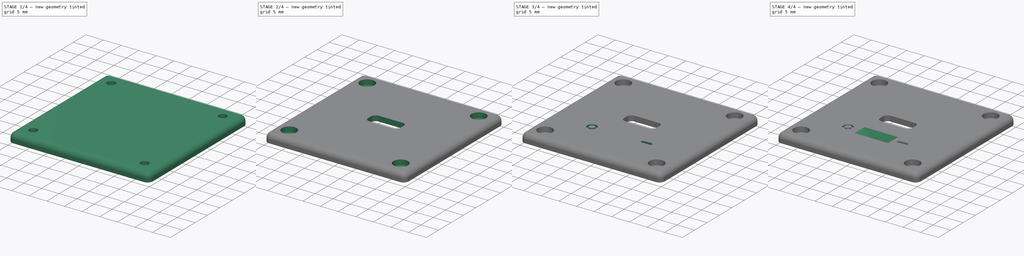
[diagram: build sequence overview — one tinted view per stage of 4, left to right]
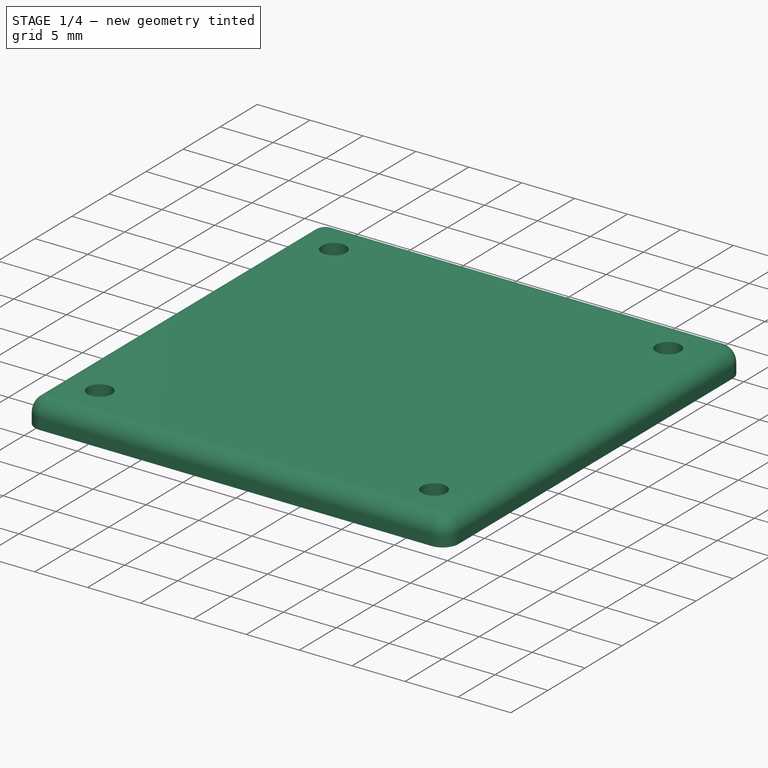
[diagram: stage 1 of 4 — iso view after this stage's code; geometry added in this stage tinted green]
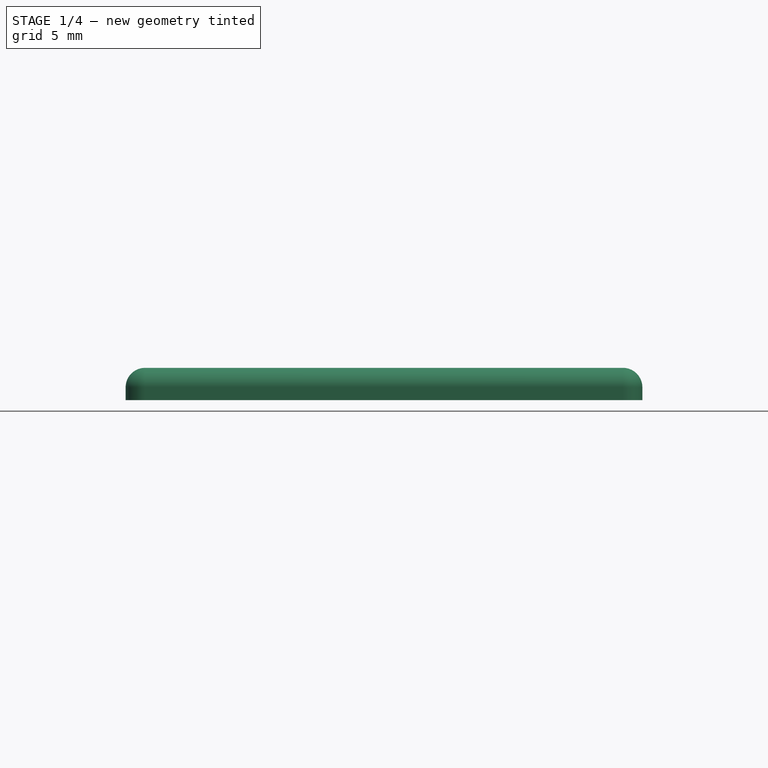
[diagram: stage 1 of 4 — front view after this stage's code; geometry added in this stage tinted green]
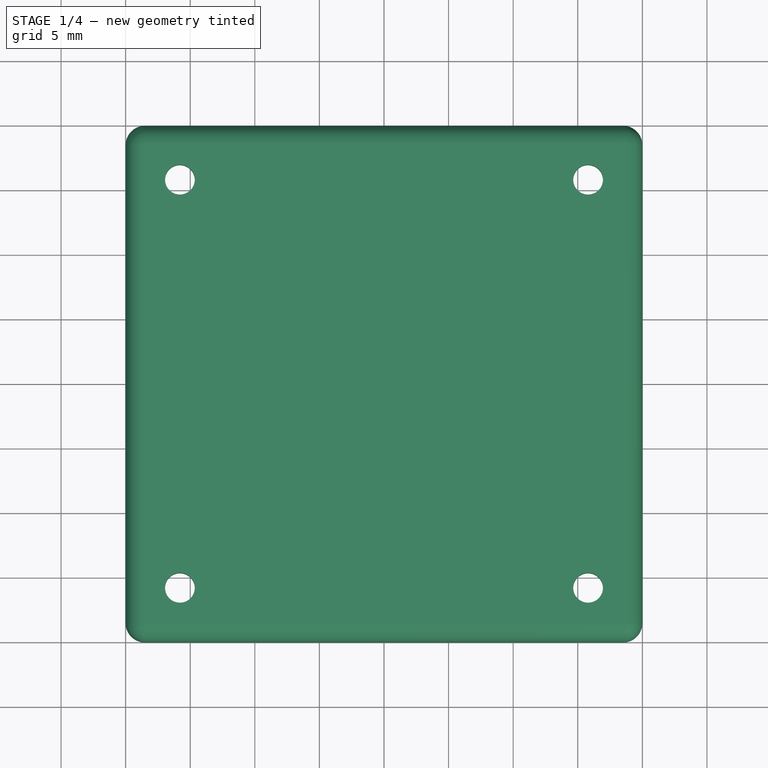
[diagram: stage 1 of 4 — top view after this stage's code; geometry added in this stage tinted green]
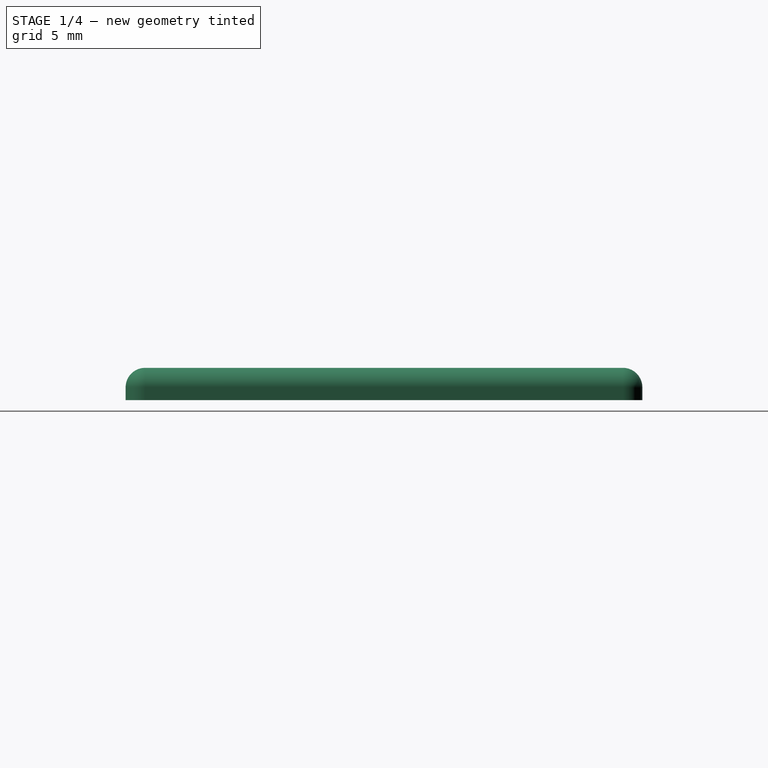
[diagram: stage 1 of 4 — right view after this stage's code; geometry added in this stage tinted green]
FCSTD DOCUMENT  (FreeCAD 1.0R39109 (Git))
Label: bbk3_bottom
License: All rights reserved
LicenseURL: https://en.wikipedia.org/wiki/All_rights_reserved
objects: Sketcher::SketchObject×8, PartDesign::Pocket×8, PartDesign::Pad×2, Spreadsheet::Sheet×1, PartDesign::Fillet×1, Part::Loft×1, PartDesign::Body×1, Part::Cut×1
note: 52 computed .brp shape members not serialized (recipe doc carries the construction recipe); baked Part::Feature solids carry a one-line shape summary decoded from their .brp

FEATURE [Spreadsheet::Sheet] Spreadsheet  label="bottom_parameters"
  cells = A1='cube_size; B1(cube_size)=40; A2='plate_height; B2(plate_height)=2.5; A3='radius_corner; B3(radius_corner)=1.5; A4='radius_inner; B4(radius_inner)=1.15; A5='radius_outer; B5(radius_outer)=2.05; A6='distance_origin; B6(distance_origin)=4.2; A7='radius_magnet; B7(radius_magnet)=3.2; A8='outer_heigth; B8(outer_heigth)=1.5; A9='inner_height; B9(inner_height)=3; A10='inner_rect_depth; B10(inner_rect_depth)=9.2; A11='inner_rect_larg; B11(inner_rect_larg)=3.75; A12='inner_rect_distance_from_center; B12(inner_rect_distance_from_center)=0.75; A13='inner_rect_radius; B13(inner_rect_radius)=1.25; A14='bottom_rect_distance_center; B14(bottom_rect_distance_center)=2.5; A15='bottom_rect_depth; B15(bottom_rect_depth)=22; A16='bottom_rect_larg; B16(bottom_rect_larg)=11; A17='bottom_rect_height; B17(bottom_rect_height)=1; A18='bottom_rect2_distance_center; B18(bottom_rect2_distance_center)=8; A19='bottom_rect2_depth; B19(bottom_rect2_depth)=9.5; A20='bottom_rect2_larg; B20(bottom_rect2_larg)=4; A21='bottom_rect2_height; B21(bottom_rect2_height)=0.875; A22='front_rect_distance_center; B22(front_rect_distance_center)=8; A23='front_rect_depth; B23(front_rect_depth)=4.75; A24='front_rect_larg; B24(front_rect_larg)=2; A25='front_rect_height; B25(front_rect_height)=1.8; A26='switch_distance_center; B26(switch_distance_center)=8; A27='switch_rect_depth; B27(switch_rect_depth)=3; A28='switch_rect_larg; B28(switch_rect_larg)=1; A29='switch_rect_height; B29(switch_rect_height)=0.5; A30='switch_radius; B30(switch_radius)=0.5; A31='switch_distance_center2; B31(switch_distance_center2)=7.5; A32='front_big_circle_radius; B32(front_big_circle_radius)=1.33; A33='front_little_circle_radius; B33(front_little_circle_radius)=0.75; A34='magnet_height; B34(magnet_height)=1.75; A35='magnet_to_center; B35(magnet_to_center)=12
FEATURE [Sketcher::SketchObject] Sketch
  ArcFitTolerance = 1e-06
  AttachmentSupport = -> [XY_Plane]
  FullyConstrained = true
  MakeInternals = false
  MapMode = 5
  expr: Constraints[20] = <<bottom_parameters>>.radius_corner
  expr: Constraints[21] = <<bottom_parameters>>.cube_size
  expr: Constraints[22] = <<bottom_parameters>>.cube_size
  sketch-geometry (10):
    g0: LineSegment StartX=0 StartY=1.5 StartZ=0 EndX=0 EndY=38.5 EndZ=0
    g1: LineSegment StartX=-1.5 StartY=40 StartZ=0 EndX=-38.5 EndY=40 EndZ=0
    g2: LineSegment StartX=-40 StartY=38.5 StartZ=0 EndX=-40 EndY=1.5 EndZ=0
    g3: LineSegment StartX=-38.5 StartY=0 StartZ=0 EndX=-1.5 EndY=0 EndZ=0
    g4: ArcOfCircle CenterX=-1.5 CenterY=1.5 CenterZ=0 NormalX=0 NormalY=0 NormalZ=1 AngleXU=0 Radius=1.5 StartAngle=4.71239 EndAngle=6.28319
    g5: ArcOfCircle CenterX=-1.5 CenterY=38.5 CenterZ=0 NormalX=0 NormalY=0 NormalZ=1 AngleXU=0 Radius=1.5 StartAngle=1.3e-15 EndAngle=1.5708
    g6: ArcOfCircle CenterX=-38.5 CenterY=38.5 CenterZ=0 NormalX=0 NormalY=0 NormalZ=1 AngleXU=0 Radius=1.5 StartAngle=1.5708 EndAngle=3.14159
    g7: ArcOfCircle CenterX=-38.5 CenterY=1.5 CenterZ=0 NormalX=0 NormalY=0 NormalZ=1 AngleXU=0 Radius=1.5 StartAngle=3.14159 EndAngle=4.71239
    g8: GeomPoint [constr] X=0 Y=0 Z=0
    g9: GeomPoint [constr] X=-40 Y=40 Z=0
  constraints (23):
    c: Tangent(g0,g4) = -1.5708
    c: Tangent(g0,g5) = -1.5708
    c: Tangent(g1,g5) = -1.5708
    c: Tangent(g1,g6) = -1.5708
    c: Tangent(g2,g6) = -1.5708
    c: Tangent(g2,g7) = -1.5708
    c: Tangent(g3,g7) = -1.5708
    c: Tangent(g3,g4) = -1.5708
    c: Vertical(g0)
    c: Vertical(g2)
    c: Horizontal(g1)
    c: Horizontal(g3)
    c: Equal(g4,g5)
    c: Equal(g5,g6)
    c: Equal(g6,g7)
    c: PointOnObject(g8,g0)
    c: PointOnObject(g8,g3)
    c: PointOnObject(g9,g1)
    c: PointOnObject(g9,g2)
    c: Coincident(g8,g-1)
    c: Radius(g6) = 1.5
    c: Distance(g9,g-2) = 40
    c: Distance(g9,g-1) = 40
FEATURE [PartDesign::Pad] Pad
  Direction = (0,0,1)
  Length = 2.5
  Length2 = 10
  Profile = -> Sketch
  ReferenceAxis = -> Sketch [N_Axis]
  Refine = true
  Suppressed = false
  Type = 0
  expr: Length = <<bottom_parameters>>.plate_height
FEATURE [PartDesign::Fillet] Fillet
  Base = -> Pad [Edge4,Edge24,Edge22,Edge19,Edge16,Edge13,Edge10,Edge7]
  BaseFeature = -> Pad
  Radius = 1.5
  Refine = true
  SupportTransform = false
  Suppressed = false
  UseAllEdges = false
  expr: Radius = <<bottom_parameters>>.radius_corner
FEATURE [Sketcher::SketchObject] Sketch001
  ArcFitTolerance = 1e-06
  AttachmentSupport = -> [Fillet]
  ExternalGeometry = -> [Fillet]
  FullyConstrained = true
  MakeInternals = false
  MapMode = 5
  Placement = pos=(0,0,2.5) rot=(0,0,1;0rad)
  expr: Constraints[0] = <<bottom_parameters>>.radius_outer
  expr: Constraints[17] = <<bottom_parameters>>.radius_inner
  expr: Constraints[18] = <<bottom_parameters>>.radius_outer
  expr: Constraints[25] = <<bottom_parameters>>.distance_origin
  expr: Constraints[26] = <<bottom_parameters>>.distance_origin
  expr: Constraints[27] = <<bottom_parameters>>.distance_origin
  expr: Constraints[28] = <<bottom_parameters>>.distance_origin
  expr: Constraints[29] = <<bottom_parameters>>.distance_origin
  expr: Constraints[2] = <<bottom_parameters>>.radius_inner
  expr: Constraints[30] = <<bottom_parameters>>.distance_origin
  expr: Constraints[3] = <<bottom_parameters>>.distance_origin
  expr: Constraints[4] = <<bottom_parameters>>.distance_origin
  sketch-geometry (12):
    g0: Circle CenterX=-4.2 CenterY=4.2 CenterZ=0 NormalX=0 NormalY=0 NormalZ=1 AngleXU=0 Radius=2.05
    g1: Circle CenterX=-4.2 CenterY=4.2 CenterZ=0 NormalX=0 NormalY=0 NormalZ=1 AngleXU=0 Radius=1.15
    g2: LineSegment [constr] StartX=-38.5 StartY=40 StartZ=0 EndX=-40 EndY=40 EndZ=0
    g3: LineSegment [constr] StartX=-40 StartY=40 StartZ=0 EndX=-40 EndY=38.5 EndZ=0
    g4: LineSegment [constr] StartX=-1.5 StartY=40 StartZ=0 EndX=0 EndY=40 EndZ=0
    g5: LineSegment [constr] StartX=-40 StartY=1.5 StartZ=0 EndX=-40 EndY=0 EndZ=0
    g6: Circle CenterX=-35.8 CenterY=4.2 CenterZ=0 NormalX=0 NormalY=0 NormalZ=1 AngleXU=0 Radius=1.15
    g7: Circle CenterX=-35.8 CenterY=4.2 CenterZ=0 NormalX=0 NormalY=0 NormalZ=1 AngleXU=0 Radius=2.05
    g8: Circle CenterX=-4.2 CenterY=35.8 CenterZ=0 NormalX=0 NormalY=0 NormalZ=1 AngleXU=0 Radius=1.15
    g9: Circle CenterX=-4.2 CenterY=35.8 CenterZ=0 NormalX=0 NormalY=0 NormalZ=1 AngleXU=0 Radius=2.05
    g10: Circle CenterX=-35.8 CenterY=35.8 CenterZ=0 NormalX=0 NormalY=0 NormalZ=1 AngleXU=0 Radius=1.15
    g11: Circle CenterX=-35.8 CenterY=35.8 CenterZ=0 NormalX=0 NormalY=0 NormalZ=1 AngleXU=0 Radius=2.05
  constraints (31):
    c: Radius(g0) = 2.05
    c: Coincident(g1,g0)
    c: Radius(g1) = 1.15
    c: DistanceX(g0,g-1) = 4.2
    c: DistanceY(g-1,g0) = 4.2
    c: Coincident(g2,g-3)
    c: Coincident(g3,g2)
    c: Coincident(g3,g-4)
    c: Vertical(g3)
    c: Perpendicular(g3,g2)
    c: Coincident(g4,g-3)
    c: PointOnObject(g4,g-2)
    c: Perpendicular(g-2,g4)
    c: Coincident(g5,g-4)
    c: PointOnObject(g5,g-1)
    c: Perpendicular(g-1,g5)
    c: Coincident(g7,g6)
    c: Radius(g6) = 1.15
    c: Radius(g7) = 2.05
    c: Coincident(g9,g8)
    c: Radius(g8) = 1.15
    c: Radius(g9) = 2.05
    c: Coincident(g11,g10)
    c: Radius(g10) = 1.15
    c: Radius(g11) = 2.05
    c: DistanceX(g5,g6) = 4.2
    c: DistanceX(g2,g10) = 4.2
    c: DistanceX(g8,g4) = 4.2
    c: DistanceY(g8,g4) = 4.2
    c: DistanceY(g10,g2) = 4.2
    c: DistanceY(g5,g6) = 4.2
FEATURE [PartDesign::Pocket] Pocket
  BaseFeature = -> Fillet
  Direction = (0,0,-1)
  Length = 3
  Length2 = 5
  Profile = -> Sketch001 [Edge5,Edge2,Vertex3,Edge3,Edge7]
  ReferenceAxis = -> Sketch001 [N_Axis]
  Refine = true
  Suppressed = false
  Type = 1
  expr: Length = <<bottom_parameters>>.inner_height
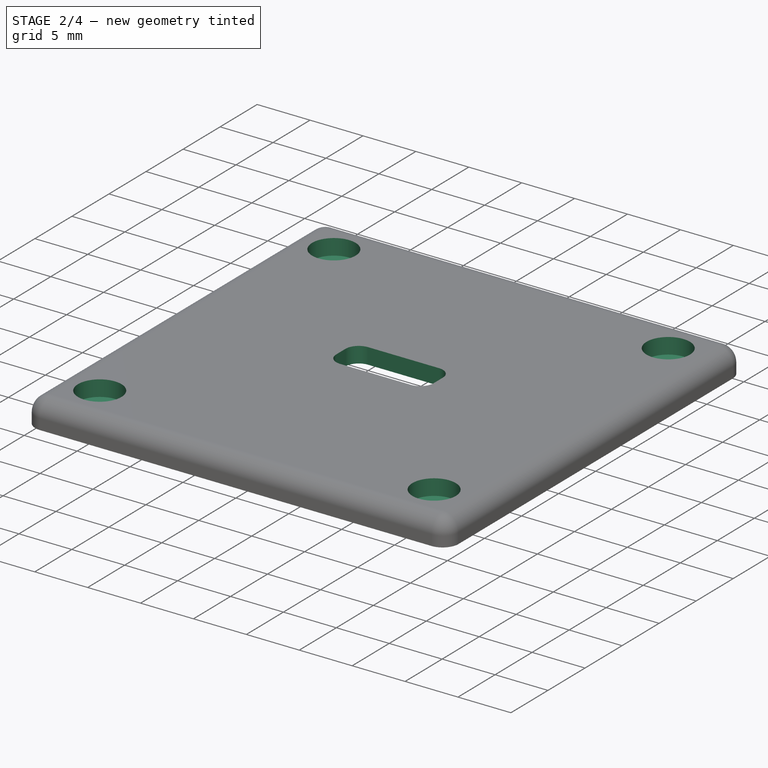
[diagram: stage 2 of 4 — iso view after this stage's code; geometry added in this stage tinted green]
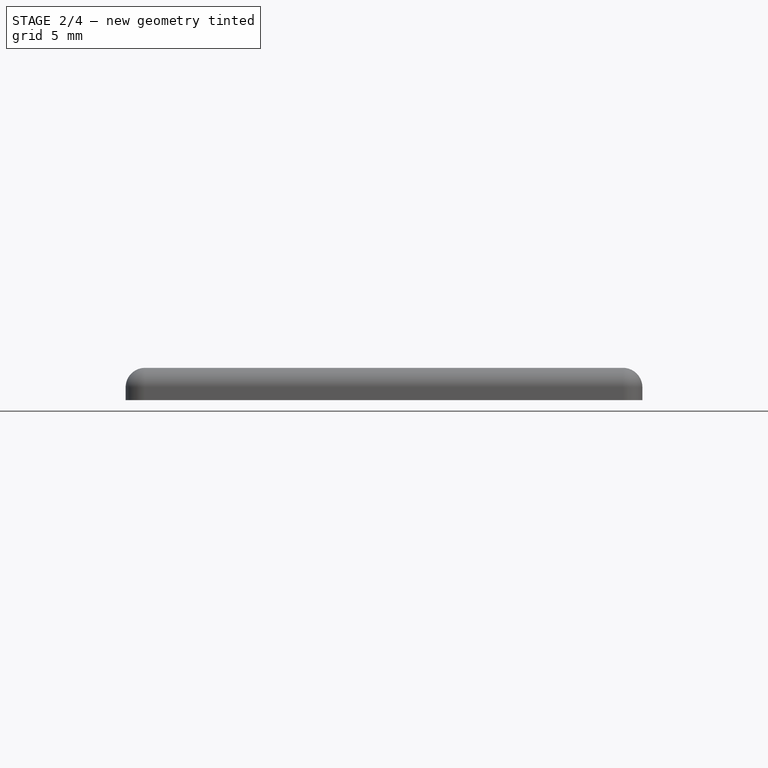
[diagram: stage 2 of 4 — front view after this stage's code; geometry added in this stage tinted green]
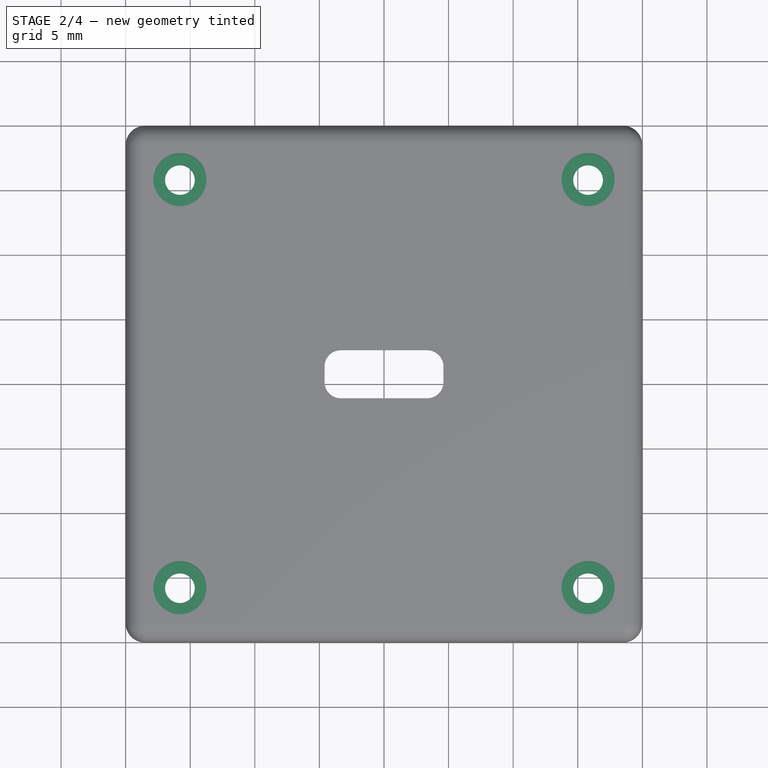
[diagram: stage 2 of 4 — top view after this stage's code; geometry added in this stage tinted green]
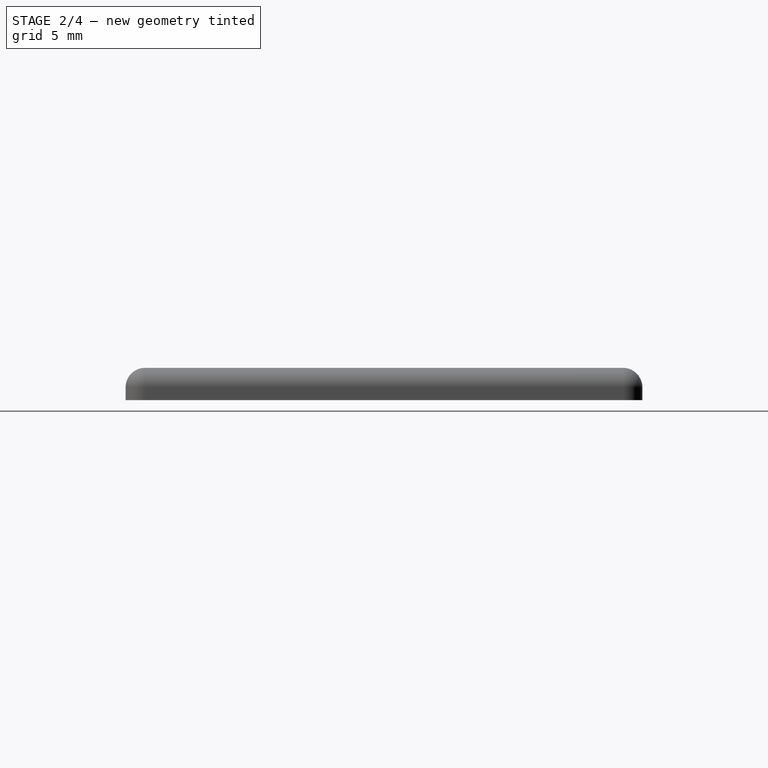
[diagram: stage 2 of 4 — right view after this stage's code; geometry added in this stage tinted green]
FEATURE [PartDesign::Pocket] Pocket001
  BaseFeature = -> Pocket
  Direction = (0,0,-1)
  Length = 1.5
  Length2 = 5
  Profile = -> Sketch001 [Edge4,Edge8,Edge6,Edge1]
  ReferenceAxis = -> Sketch001 [N_Axis]
  Refine = true
  Suppressed = false
  Type = 0
  expr: Length = <<bottom_parameters>>.outer_heigth
FEATURE [Sketcher::SketchObject] Sketch002
  ArcFitTolerance = 1e-06
  AttachmentSupport = -> [Pocket001]
  ExternalGeometry = -> [Pocket001]
  FullyConstrained = true
  MakeInternals = false
  MapMode = 5
  Placement = pos=(0,0,2.5) rot=(0,0,1;0rad)
  expr: Constraints[19] = <<bottom_parameters>>.inner_rect_radius
  expr: Constraints[20] = <<bottom_parameters>>.inner_rect_depth
  expr: Constraints[21] = <<bottom_parameters>>.inner_rect_larg
  expr: Constraints[34] = <<bottom_parameters>>.inner_rect_distance_from_center
  sketch-geometry (16):
    g0: LineSegment StartX=-24.6 StartY=21.375 StartZ=0 EndX=-24.6 EndY=20.125 EndZ=0
    g1: LineSegment StartX=-23.35 StartY=18.875 StartZ=0 EndX=-16.65 EndY=18.875 EndZ=0
    g2: LineSegment StartX=-15.4 StartY=20.125 StartZ=0 EndX=-15.4 EndY=21.375 EndZ=0
    g3: LineSegment StartX=-16.65 StartY=22.625 StartZ=0 EndX=-23.35 EndY=22.625 EndZ=0
    g4: ArcOfCircle CenterX=-23.35 CenterY=21.375 CenterZ=0 NormalX=0 NormalY=0 NormalZ=1 AngleXU=0 Radius=1.25 StartAngle=1.5708 EndAngle=3.14159
    g5: ArcOfCircle CenterX=-23.35 CenterY=20.125 CenterZ=0 NormalX=0 NormalY=0 NormalZ=1 AngleXU=0 Radius=1.25 StartAngle=3.14159 EndAngle=4.71239
    g6: ArcOfCircle CenterX=-16.65 CenterY=20.125 CenterZ=0 NormalX=0 NormalY=0 NormalZ=1 AngleXU=0 Radius=1.25 StartAngle=4.71239 EndAngle=6.28319
    g7: ArcOfCircle CenterX=-16.65 CenterY=21.375 CenterZ=0 NormalX=0 NormalY=0 NormalZ=1 AngleXU=0 Radius=1.25 StartAngle=1e-15 EndAngle=1.5708
    g8: GeomPoint [constr] X=-24.6 Y=22.625 Z=0
    g9: GeomPoint [constr] X=-15.4 Y=18.875 Z=0
    g10: LineSegment [constr] StartX=-38.5 StartY=38.5 StartZ=0 EndX=-1.5 EndY=1.5 EndZ=0
    g11: LineSegment [constr] StartX=-38.5 StartY=1.5 StartZ=0 EndX=-1.5 EndY=38.5 EndZ=0
    g12: GeomPoint [constr] X=-20 Y=20 Z=0
    g13: LineSegment [constr] StartX=-23.35 StartY=18.875 StartZ=0 EndX=-16.65 EndY=22.625 EndZ=0
    g14: LineSegment [constr] StartX=-23.35 StartY=22.625 StartZ=0 EndX=-16.65 EndY=18.875 EndZ=0
    g15: GeomPoint [constr] X=-20 Y=20.75 Z=0
  constraints (36):
    c: Tangent(g0,g4) = -1.5708
    c: Tangent(g0,g5) = -1.5708
    c: Tangent(g1,g5) = -1.5708
    c: Tangent(g1,g6) = -1.5708
    c: Tangent(g2,g6) = -1.5708
    c: Tangent(g2,g7) = -1.5708
    c: Tangent(g3,g7) = -1.5708
    c: Tangent(g3,g4) = -1.5708
    c: Vertical(g0)
    c: Vertical(g2)
    c: Horizontal(g1)
    c: Horizontal(g3)
    c: Equal(g4,g5)
    c: Equal(g5,g6)
    c: Equal(g6,g7)
    c: PointOnObject(g8,g0)
    c: PointOnObject(g8,g3)
    c: PointOnObject(g9,g1)
    c: PointOnObject(g9,g2)
    c: Radius(g4) = 1.25
    c: DistanceX(g8,g9) = 9.2
    c: DistanceY(g9,g8) = 3.75
    c: Coincident(g10,g-3)
    c: Coincident(g10,g-4)
    c: Coincident(g11,g-4)
    c: Coincident(g11,g-3)
    c: PointOnObject(g12,g11)
    c: PointOnObject(g12,g10)
    c: Coincident(g13,g1)
    c: Coincident(g13,g3)
    c: Coincident(g14,g3)
    c: Coincident(g14,g1)
    c: PointOnObject(g15,g13)
    c: PointOnObject(g15,g14)
    c: DistanceY(g12,g15) = 0.75
    c: DistanceX(g12,g15) = 0
FEATURE [PartDesign::Pocket] Pocket002
  BaseFeature = -> Pocket001
  Direction = (0,0,-1)
  Length = 6
  Length2 = 5
  Profile = -> Sketch002
  ReferenceAxis = -> Sketch002 [N_Axis]
  Refine = true
  Suppressed = false
  Type = 1
FEATURE [Sketcher::SketchObject] Sketch003
  ArcFitTolerance = 1e-06
  AttachmentSupport = -> [Pocket002]
  ExternalGeometry = -> [Pocket002]
  FullyConstrained = false
  MakeInternals = false
  MapMode = 5
  Placement = pos=(0,0,0) rot=(1,0,0;3.14159rad)
  expr: Constraints[33] = <<bottom_parameters>>.bottom_rect_distance_center
  expr: Constraints[42] = <<bottom_parameters>>.bottom_rect2_depth
  expr: Constraints[43] = <<bottom_parameters>>.bottom_rect2_larg
  expr: Constraints[51] = <<bottom_parameters>>.bottom_rect2_distance_center
  expr: Constraints[8] = <<bottom_parameters>>.bottom_rect_depth
  expr: Constraints[9] = <<bottom_parameters>>.bottom_rect_larg
  sketch-geometry (21):
    g0: LineSegment StartX=-30.9824 StartY=-17.0176 StartZ=0 EndX=-30.9824 EndY=-28.0176 EndZ=0
    g1: LineSegment StartX=-30.9824 StartY=-28.0176 StartZ=0 EndX=-8.98245 EndY=-28.0176 EndZ=0
    g2: LineSegment StartX=-8.98245 StartY=-28.0176 StartZ=0 EndX=-8.98245 EndY=-17.0176 EndZ=0
    g3: LineSegment StartX=-8.98245 StartY=-17.0176 StartZ=0 EndX=-30.9824 EndY=-17.0176 EndZ=0
    g4: LineSegment [constr] StartX=-38.5 StartY=-40 StartZ=0 EndX=-39.9641 EndY=-40.0343 EndZ=0
    g5: LineSegment [constr] StartX=-39.9641 StartY=-40.0343 StartZ=0 EndX=-40 EndY=-38.5 EndZ=0
    g6: LineSegment [constr] StartX=-40 StartY=-1.5 StartZ=0 EndX=-40 EndY=0 EndZ=0
    g7: LineSegment [constr] StartX=0 StartY=-40 StartZ=0 EndX=-1.5 EndY=-40 EndZ=0
    g8: LineSegment [constr] StartX=-40 StartY=0 StartZ=0 EndX=0 EndY=-40 EndZ=0
    g9: LineSegment [constr] StartX=-39.9641 StartY=-40.0343 StartZ=0 EndX=0 EndY=0 EndZ=0
    g10: GeomPoint [constr] X=-19.9824 Y=-20.0176 Z=0
    g11: LineSegment [constr] StartX=-30.9824 StartY=-28.0176 StartZ=0 EndX=-8.98245 EndY=-17.0176 EndZ=0
    g12: LineSegment [constr] StartX=-30.9824 StartY=-17.0176 StartZ=0 EndX=-8.98245 EndY=-28.0176 EndZ=0
    g13: GeomPoint [constr] X=-19.9824 Y=-22.5176 Z=0
    g14: LineSegment StartX=-24.7324 StartY=-10.0176 StartZ=0 EndX=-24.7324 EndY=-14.0176 EndZ=0
    g15: LineSegment StartX=-24.7324 StartY=-14.0176 StartZ=0 EndX=-15.2324 EndY=-14.0176 EndZ=0
    g16: LineSegment StartX=-15.2324 StartY=-14.0176 StartZ=0 EndX=-15.2324 EndY=-10.0176 EndZ=0
    g17: LineSegment StartX=-15.2324 StartY=-10.0176 StartZ=0 EndX=-24.7324 EndY=-10.0176 EndZ=0
    g18: LineSegment [constr] StartX=-15.2324 StartY=-10.0176 StartZ=0 EndX=-24.7324 EndY=-14.0176 EndZ=0
    g19: LineSegment [constr] StartX=-24.7324 StartY=-10.0176 StartZ=0 EndX=-15.2324 EndY=-14.0176 EndZ=0
    g20: GeomPoint [constr] X=-19.9824 Y=-12.0176 Z=0
  constraints (52):
    c: Coincident(g0,g1)
    c: Coincident(g1,g2)
    c: Coincident(g2,g3)
    c: Coincident(g3,g0)
    c: Vertical(g0)
    c: Vertical(g2)
    c: Horizontal(g1)
    c: Horizontal(g3)
    c: DistanceX(g3,g3) = 22
    c: DistanceY(g0,g0) = 11
    c: Coincident(g4,g-4)
    c: Coincident(g5,g4)
    c: Coincident(g5,g-3)
    c: Coincident(g6,g-3)
    c: PointOnObject(g6,g-1)
    c: PointOnObject(g7,g-2)
    c: Coincident(g7,g-4)
    c: Perpendicular(g-1,g6)
    c: Perpendicular(g5,g4)
    c: Perpendicular(g-2,g7)
    c: Coincident(g8,g6)
    c: Coincident(g8,g7)
    c: Coincident(g9,g4)
    c: Coincident(g9,g-1)
    c: PointOnObject(g10,g9)
    c: PointOnObject(g10,g8)
    c: Coincident(g11,g0)
    c: Coincident(g11,g2)
    c: Coincident(g12,g0)
    c: Coincident(g12,g1)
    c: PointOnObject(g13,g12)
    c: PointOnObject(g13,g11)
    c: DistanceX(g13,g10) = 0
    c: DistanceY(g13,g10) = 2.5
    c: Coincident(g14,g15)
    c: Coincident(g15,g16)
    c: Coincident(g16,g17)
    c: Coincident(g17,g14)
    c: Vertical(g14)
    c: Vertical(g16)
    c: Horizontal(g15)
    c: Horizontal(g17)
    c: DistanceX(g17,g17) = 9.5
    c: DistanceY(g14,g14) = 4
    c: Coincident(g18,g16)
    c: Coincident(g18,g14)
    c: Coincident(g19,g14)
    c: Coincident(g19,g15)
    c: PointOnObject(g20,g18)
    c: PointOnObject(g20,g19)
    c: DistanceX(g20,g10) = 0
    c: DistanceY(g10,g20) = 8
FEATURE [PartDesign::Pocket] Pocket003
  BaseFeature = -> Pocket002
  Direction = (0,0,1)
  Length = 1
  Length2 = 5
  Profile = -> Sketch003 [Edge4,Edge1,Edge2,Edge3]
  ReferenceAxis = -> Sketch003 [N_Axis]
  Refine = true
  Suppressed = false
  Type = 0
  expr: Length = <<bottom_parameters>>.bottom_rect_height
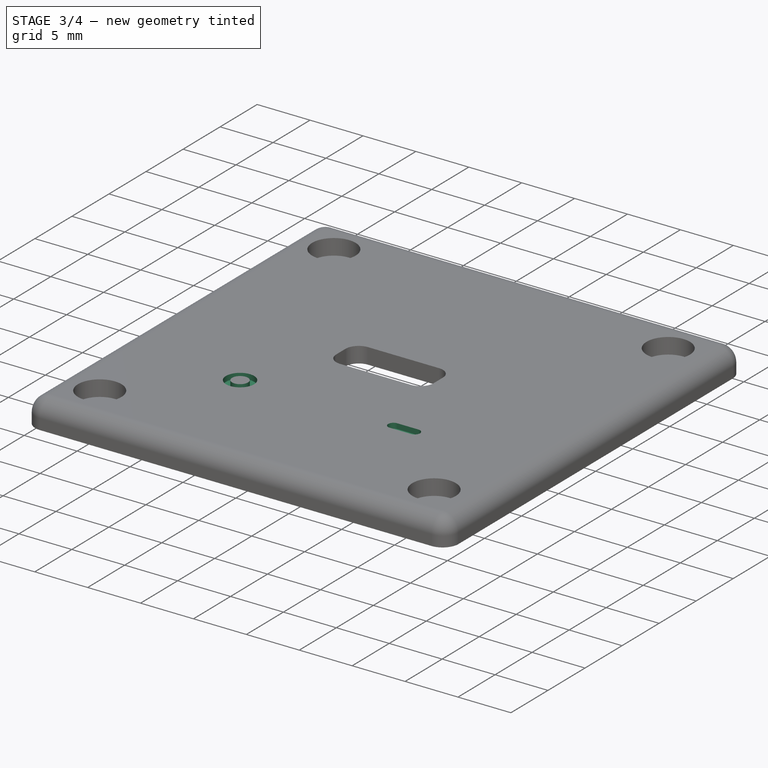
[diagram: stage 3 of 4 — iso view after this stage's code; geometry added in this stage tinted green]
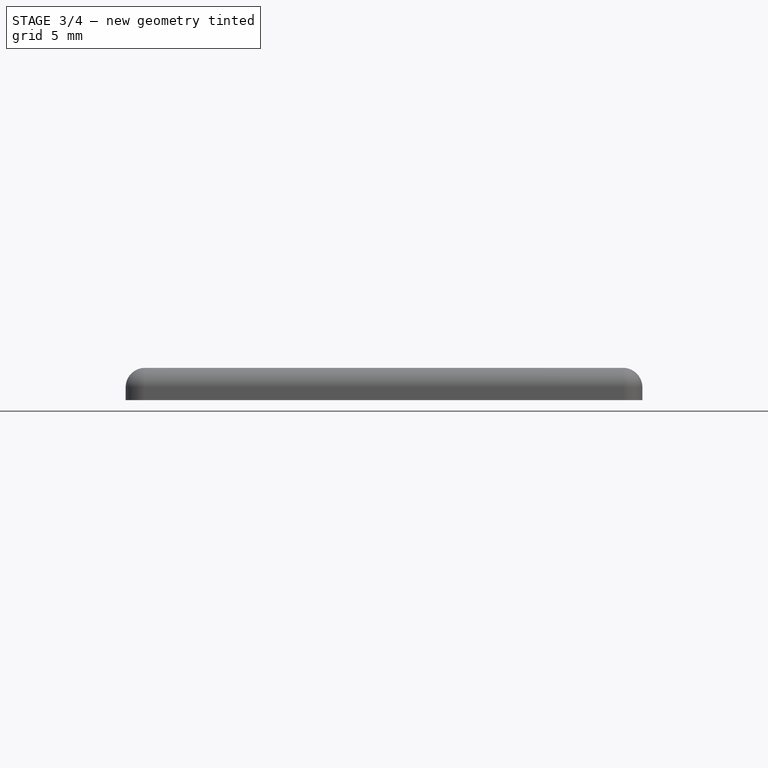
[diagram: stage 3 of 4 — front view after this stage's code; geometry added in this stage tinted green]
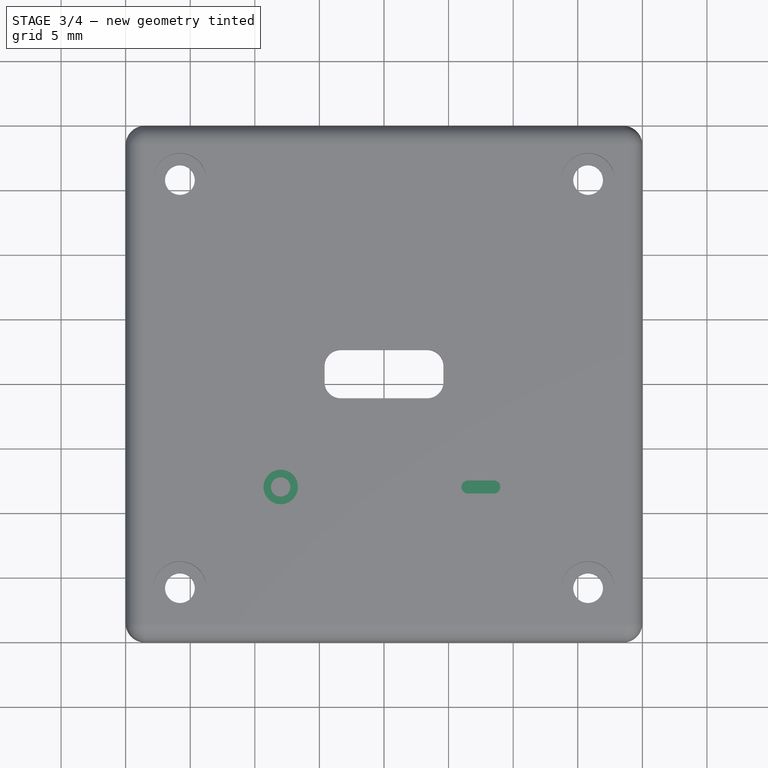
[diagram: stage 3 of 4 — top view after this stage's code; geometry added in this stage tinted green]
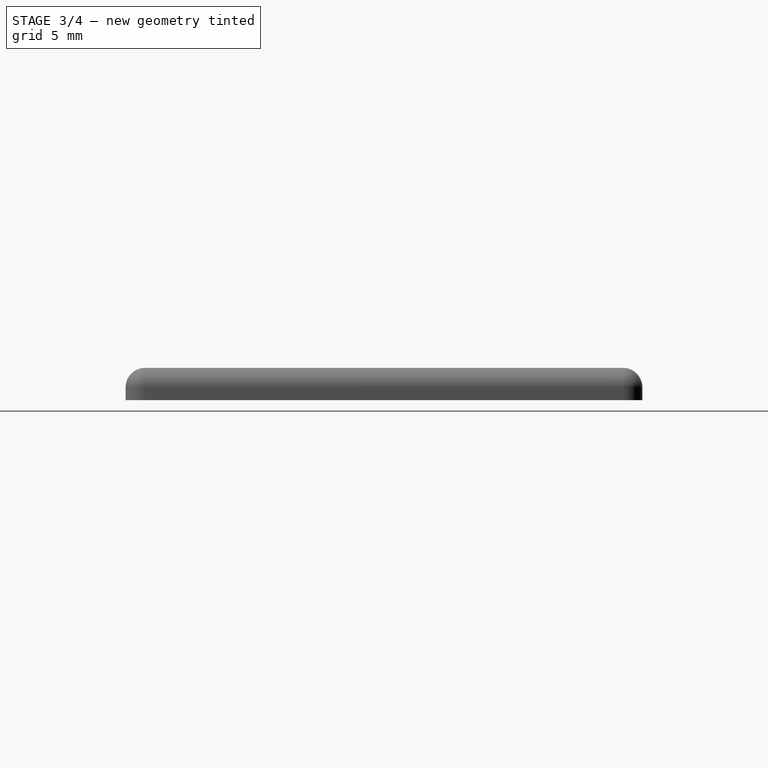
[diagram: stage 3 of 4 — right view after this stage's code; geometry added in this stage tinted green]
FEATURE [PartDesign::Pocket] Pocket004
  BaseFeature = -> Pocket003
  Direction = (0,0,1)
  Length = 0.875
  Length2 = 5
  Profile = -> Sketch003 [Edge8,Edge5,Edge6,Edge7]
  ReferenceAxis = -> Sketch003 [N_Axis]
  Refine = true
  Suppressed = false
  Type = 0
  expr: Length = <<bottom_parameters>>.bottom_rect2_height
FEATURE [Sketcher::SketchObject] Sketch006
  ArcFitTolerance = 1e-06
  AttachmentSupport = -> [Pocket004]
  ExternalGeometry = -> [Pocket004]
  FullyConstrained = true
  MakeInternals = false
  MapMode = 5
  Placement = pos=(0,0,2.5) rot=(0,0,1;0rad)
  expr: Constraints[16] = <<bottom_parameters>>.switch_rect_larg
  expr: Constraints[17] = <<bottom_parameters>>.switch_rect_depth - 2 * <<bottom_parameters>>.switch_radius
  expr: Constraints[3] = <<bottom_parameters>>.switch_distance_center
  expr: Constraints[4] = <<bottom_parameters>>.switch_distance_center2
  expr: Constraints[6] = <<bottom_parameters>>.front_little_circle_radius
  expr: Constraints[7] = <<bottom_parameters>>.front_big_circle_radius
  expr: Constraints[8] = <<bottom_parameters>>.switch_distance_center
  sketch-geometry (12):
    g0: LineSegment [constr] StartX=-1.5 StartY=38.5 StartZ=0 EndX=-38.5 EndY=1.5 EndZ=0
    g1: GeomPoint [constr] X=-20 Y=20 Z=0
    g2: GeomPoint [constr] X=-12.5 Y=12 Z=0
    g3: Circle CenterX=-28 CenterY=12 CenterZ=0 NormalX=0 NormalY=0 NormalZ=1 AngleXU=0 Radius=1.33
    g4: Circle CenterX=-28 CenterY=12 CenterZ=0 NormalX=0 NormalY=0 NormalZ=1 AngleXU=0 Radius=0.75
    g5: ArcOfCircle CenterX=-13.5 CenterY=12 CenterZ=0 NormalX=0 NormalY=0 NormalZ=1 AngleXU=0 Radius=0.5 StartAngle=1.5708 EndAngle=4.71239
    g6: ArcOfCircle CenterX=-11.5 CenterY=12 CenterZ=0 NormalX=0 NormalY=0 NormalZ=1 AngleXU=0 Radius=0.5 StartAngle=4.71239 EndAngle=7.85398
    g7: LineSegment StartX=-13.5 StartY=12.5 StartZ=0 EndX=-11.5 EndY=12.5 EndZ=0
    g8: LineSegment StartX=-13.5 StartY=11.5 StartZ=0 EndX=-11.5 EndY=11.5 EndZ=0
    g9: LineSegment [constr] StartX=-13.5 StartY=12 StartZ=0 EndX=-12.5 EndY=12 EndZ=0
    g10: LineSegment [constr] StartX=-11.5 StartY=12 StartZ=0 EndX=-12.5 EndY=12 EndZ=0
    g11: LineSegment [constr] StartX=-1.5 StartY=1.5 StartZ=0 EndX=-38.5 EndY=38.5 EndZ=0
  constraints (27):
    c: Coincident(g0,g-4)
    c: Coincident(g0,g-3)
    c: PointOnObject(g1,g0)
    c: DistanceY(g2,g1) = 8
    c: DistanceX(g1,g2) = 7.5
    c: Coincident(g4,g3)
    c: Radius(g4) = 0.75
    c: Radius(g3) = 1.33
    c: DistanceX(g3,g1) = 8
    c: DistanceY(g3,g1) = 8
    c: Tangent(g5,g7) = 1.5708
    c: Tangent(g5,g8) = -1.5708
    c: Tangent(g6,g7) = 1.5708
    c: Tangent(g6,g8) = -1.5708
    c: Equal(g5,g6)
    c: Horizontal(g7)
    c: DistanceY(g5,g5) = 1
    c: DistanceX(g5,g6) = 2
    c: Coincident(g9,g5)
    c: Horizontal(g9)
    c: Coincident(g10,g6)
    c: Coincident(g10,g9)
    c: Equal(g10,g9)
    c: Coincident(g2,g9)
    c: Coincident(g11,g-3)
    c: Coincident(g11,g-4)
    c: PointOnObject(g1,g11)
FEATURE [PartDesign::Pocket] Pocket005
  BaseFeature = -> Pocket004
  Direction = (0,0,-1)
  Length = 0.5
  Length2 = 5
  Profile = -> Sketch006 [Edge3,Edge6,Edge5,Edge4]
  ReferenceAxis = -> Sketch006 [N_Axis]
  Refine = true
  Suppressed = false
  Type = 0
  expr: Length = <<bottom_parameters>>.switch_rect_height
FEATURE [PartDesign::Pocket] Pocket006
  BaseFeature = -> Pocket005
  Direction = (0,0,-1)
  Length = 0.5
  Length2 = 5
  Profile = -> Sketch006 [Edge1]
  ReferenceAxis = -> Sketch006 [N_Axis]
  Refine = true
  Suppressed = false
  Type = 0
  expr: Length = <<bottom_parameters>>.switch_rect_height
FEATURE [PartDesign::Pad] Pad001
  BaseFeature = -> Pocket006
  Direction = (0,0,1)
  Length = 0.5
  Length2 = 10
  Profile = -> Sketch006 [Edge2]
  ReferenceAxis = -> Sketch006 [N_Axis]
  Refine = true
  Reversed = true
  Suppressed = false
  Type = 0
  expr: Length = <<bottom_parameters>>.switch_rect_height
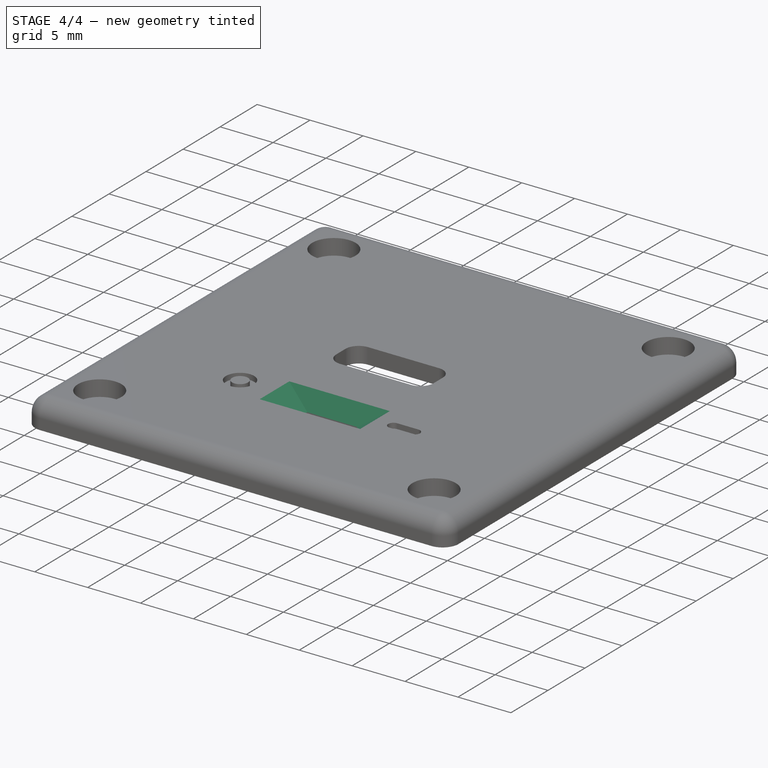
[diagram: stage 4 of 4 — iso view after this stage's code; geometry added in this stage tinted green]
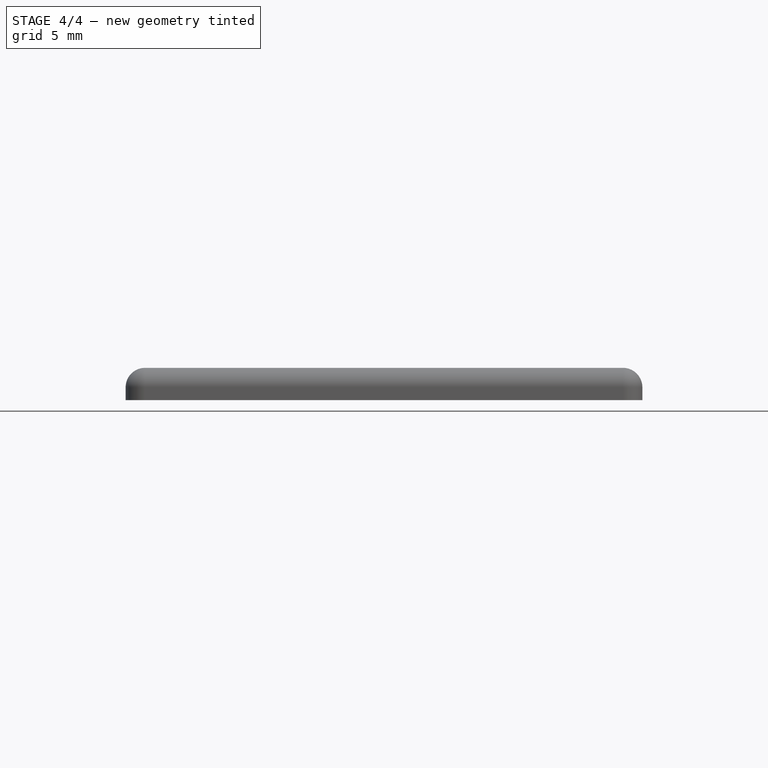
[diagram: stage 4 of 4 — front view after this stage's code; geometry added in this stage tinted green]
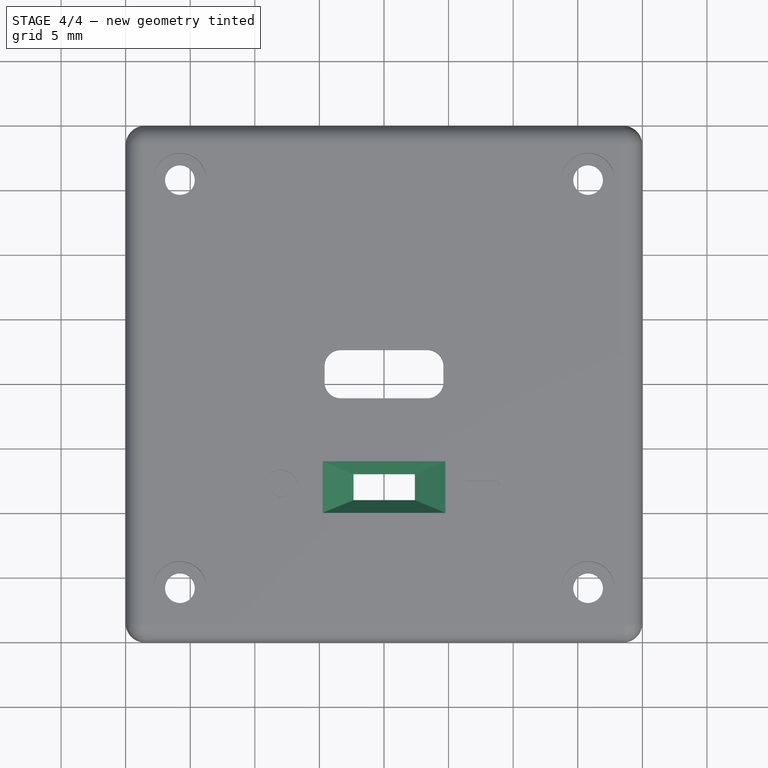
[diagram: stage 4 of 4 — top view after this stage's code; geometry added in this stage tinted green]
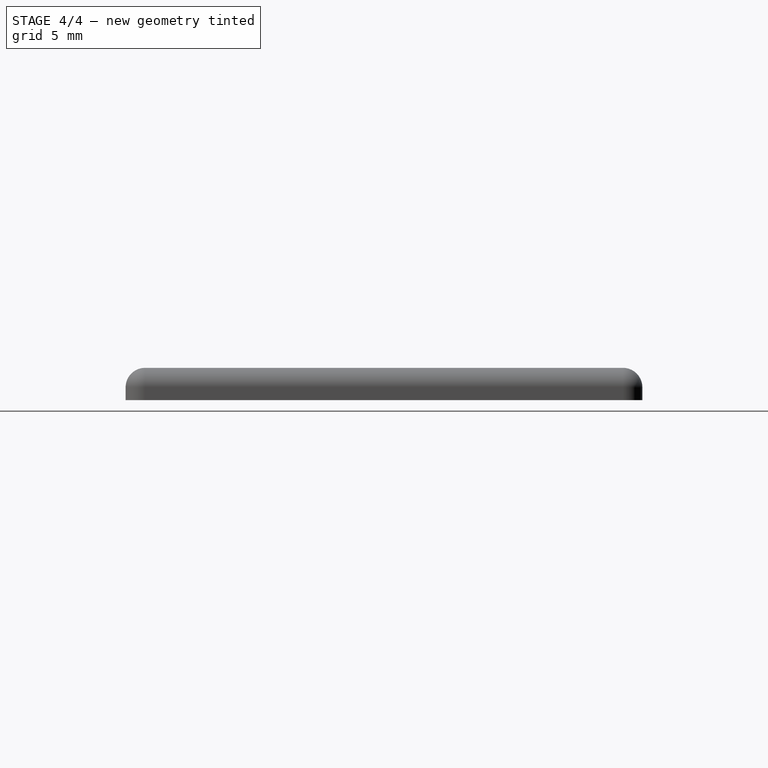
[diagram: stage 4 of 4 — right view after this stage's code; geometry added in this stage tinted green]
FEATURE [Sketcher::SketchObject] Sketch004
  ArcFitTolerance = 1e-06
  AttachmentSupport = -> [Pocket004]
  ExternalGeometry = -> [Pocket004]
  FullyConstrained = true
  MakeInternals = false
  MapMode = 5
  Placement = pos=(0,0,0.875) rot=(1,0,0;3.14159rad)
  expr: Constraints[8] = <<bottom_parameters>>.front_rect_depth
  expr: Constraints[9] = <<bottom_parameters>>.front_rect_larg
  sketch-geometry (6):
    g0: LineSegment StartX=-22.3574 StartY=-11.0176 StartZ=0 EndX=-22.3574 EndY=-13.0176 EndZ=0
    g1: LineSegment StartX=-22.3574 StartY=-13.0176 StartZ=0 EndX=-17.6074 EndY=-13.0176 EndZ=0
    g2: LineSegment StartX=-17.6074 StartY=-13.0176 StartZ=0 EndX=-17.6074 EndY=-11.0176 EndZ=0
    g3: LineSegment StartX=-17.6074 StartY=-11.0176 StartZ=0 EndX=-22.3574 EndY=-11.0176 EndZ=0
    g4: LineSegment [constr] StartX=-24.7324 StartY=-14.0176 StartZ=0 EndX=-15.2324 EndY=-10.0176 EndZ=0
    g5: LineSegment [constr] StartX=-24.7324 StartY=-10.0176 StartZ=0 EndX=-15.2324 EndY=-14.0176 EndZ=0
  constraints (16):
    c: Coincident(g0,g1)
    c: Coincident(g1,g2)
    c: Coincident(g2,g3)
    c: Coincident(g3,g0)
    c: Vertical(g0)
    c: Vertical(g2)
    c: Horizontal(g1)
    c: Horizontal(g3)
    c: DistanceX(g3,g3) = 4.75
    c: DistanceY(g0,g0) = 2
    c: Coincident(g4,g-4)
    c: Coincident(g4,g-3)
    c: Coincident(g5,g-3)
    c: Coincident(g5,g-4)
    c: PointOnObject(g0,g5)
    c: PointOnObject(g2,g4)
FEATURE [Sketcher::SketchObject] Sketch005
  ArcFitTolerance = 1e-06
  AttachmentSupport = -> [Pocket004]
  ExternalGeometry = -> [Pocket004]
  FullyConstrained = true
  MakeInternals = false
  MapMode = 5
  Placement = pos=(0,0,2.5) rot=(0,0,1;0rad)
  expr: Constraints[23] = <<bottom_parameters>>.front_rect_distance_center
  expr: Constraints[8] = <<bottom_parameters>>.front_rect_depth * 2
  expr: Constraints[9] = <<bottom_parameters>>.front_rect_larg * 2
  sketch-geometry (10):
    g0: LineSegment StartX=-24.75 StartY=14 StartZ=0 EndX=-24.75 EndY=10 EndZ=0
    g1: LineSegment StartX=-24.75 StartY=10 StartZ=0 EndX=-15.25 EndY=10 EndZ=0
    g2: LineSegment StartX=-15.25 StartY=10 StartZ=0 EndX=-15.25 EndY=14 EndZ=0
    g3: LineSegment StartX=-15.25 StartY=14 StartZ=0 EndX=-24.75 EndY=14 EndZ=0
    g4: LineSegment [constr] StartX=-38.5 StartY=38.5 StartZ=0 EndX=-1.5 EndY=1.5 EndZ=0
    g5: LineSegment [constr] StartX=-1.5 StartY=38.5 StartZ=0 EndX=-38.5 EndY=1.5 EndZ=0
    g6: LineSegment [constr] StartX=-24.75 StartY=10 StartZ=0 EndX=-15.25 EndY=14 EndZ=0
    g7: LineSegment [constr] StartX=-24.75 StartY=14 StartZ=0 EndX=-15.25 EndY=10 EndZ=0
    g8: GeomPoint [constr] X=-20 Y=20 Z=0
    g9: GeomPoint [constr] X=-20 Y=12 Z=0
  constraints (24):
    c: Coincident(g0,g1)
    c: Coincident(g1,g2)
    c: Coincident(g2,g3)
    c: Coincident(g3,g0)
    c: Vertical(g0)
    c: Vertical(g2)
    c: Horizontal(g1)
    c: Horizontal(g3)
    c: DistanceX(g3,g3) = 9.5
    c: DistanceY(g2,g2) = 4
    c: Coincident(g4,g-3)
    c: Coincident(g4,g-4)
    c: Coincident(g5,g-3)
    c: Coincident(g5,g-4)
    c: Coincident(g6,g0)
    c: Coincident(g6,g2)
    c: Coincident(g7,g0)
    c: Coincident(g7,g1)
    c: PointOnObject(g8,g4)
    c: PointOnObject(g9,g6)
    c: PointOnObject(g8,g5)
    c: PointOnObject(g9,g7)
    c: DistanceX(g8,g9) = 0
    c: DistanceY(g9,g8) = 8
FEATURE [Part::Loft] Loft
  Closed = false
  MaxDegree = 5
  Ruled = false
  Sections = -> [Sketch005,Sketch004]
  Solid = true
FEATURE [Sketcher::SketchObject] Sketch007
  ArcFitTolerance = 1e-06
  AttachmentSupport = -> [Pad001]
  ExternalGeometry = -> [Pad001]
  FullyConstrained = true
  MakeInternals = false
  MapMode = 5
  Placement = pos=(0,0,0) rot=(1,0,0;3.14159rad)
  expr: Constraints[0] = <<bottom_parameters>>.radius_magnet
  expr: Constraints[20] = <<bottom_parameters>>.magnet_to_center
  expr: Constraints[21] = <<bottom_parameters>>.magnet_to_center
  expr: Constraints[22] = <<bottom_parameters>>.magnet_to_center
  expr: Constraints[23] = <<bottom_parameters>>.magnet_to_center
  expr: Constraints[24] = <<bottom_parameters>>.magnet_to_center
  expr: Constraints[25] = <<bottom_parameters>>.magnet_to_center
  expr: Constraints[26] = <<bottom_parameters>>.magnet_to_center
  expr: Constraints[27] = <<bottom_parameters>>.magnet_to_center
  sketch-geometry (11):
    g0: Circle CenterX=-32 CenterY=-32 CenterZ=0 NormalX=0 NormalY=0 NormalZ=1 AngleXU=0 Radius=3.2
    g1: LineSegment [constr] StartX=-40 StartY=-1.5 StartZ=0 EndX=-40 EndY=0 EndZ=0
    g2: LineSegment [constr] StartX=-40 StartY=-38.5 StartZ=0 EndX=-40 EndY=-40 EndZ=0
    g3: LineSegment [constr] StartX=-38.5 StartY=-40 StartZ=0 EndX=-40 EndY=-40 EndZ=0
    g4: LineSegment [constr] StartX=-1.5 StartY=-40 StartZ=0 EndX=0 EndY=-40 EndZ=0
    g5: LineSegment [constr] StartX=-40 StartY=0 StartZ=0 EndX=0 EndY=-40 EndZ=0
    g6: LineSegment [constr] StartX=-40 StartY=-40 StartZ=0 EndX=0 EndY=0 EndZ=0
    g7: GeomPoint [constr] X=-20 Y=-20 Z=0
    g8: Circle CenterX=-8 CenterY=-8 CenterZ=0 NormalX=0 NormalY=0 NormalZ=1 AngleXU=0 Radius=3.2
    g9: Circle CenterX=-8 CenterY=-32 CenterZ=0 NormalX=0 NormalY=0 NormalZ=1 AngleXU=0 Radius=3.2
    g10: Circle CenterX=-32 CenterY=-8 CenterZ=0 NormalX=0 NormalY=0 NormalZ=1 AngleXU=0 Radius=3.2
  constraints (29):
    c: Radius(g0) = 3.2
    c: Coincident(g1,g-3)
    c: PointOnObject(g1,g-1)
    c: Coincident(g2,g-3)
    c: Coincident(g3,g-4)
    c: Coincident(g3,g2)
    c: Coincident(g4,g-4)
    c: PointOnObject(g4,g-2)
    c: Perpendicular(g-2,g4,g4) = 4.71239
    c: Perpendicular(g2,g3)
    c: Perpendicular(g-1,g1)
    c: Coincident(g5,g1)
    c: Coincident(g5,g4)
    c: Coincident(g6,g2)
    c: Coincident(g6,g-1)
    c: PointOnObject(g7,g6)
    c: PointOnObject(g7,g5)
    c: Radius(g8) = 3.2
    c: Radius(g9) = 3.2
    c: Radius(g10) = 3.2
    c: DistanceX(g0,g7) = 12
    c: DistanceX(g7,g9) = 12
    c: DistanceX(g7,g8) = 12
    c: DistanceY(g7,g10) = 12
    c: DistanceY(g7,g8) = 12
    c: DistanceY(g9,g7) = 12
    c: DistanceY(g0,g7) = 12
    c: DistanceX(g10,g7) = 12
    c: Equal(g3,g2)
FEATURE [PartDesign::Pocket] Pocket007
  BaseFeature = -> Pad001
  Direction = (0,0,1)
  Length = 1.75
  Length2 = 5
  Profile = -> Sketch007
  ReferenceAxis = -> Sketch007 [N_Axis]
  Refine = true
  Suppressed = false
  Type = 0
  expr: Length = <<bottom_parameters>>.magnet_height
FEATURE [PartDesign::Body] Body  label="Corps"
  AllowCompound = false
  Group = -> [Sketch,Pad,Fillet,Sketch001,Pocket,Pocket001,Sketch002,Pocket002,Sketch003,Pocket003,Pocket004,Sketch004,Sketch005,Sketch006,Pocket005,Pocket006,Pad001,Sketch007,Pocket007]
  Origin = -> Origin
  Tip = -> Pocket007
FEATURE [Part::Cut] Cut
  Base = -> Body
  Tool = -> Loft
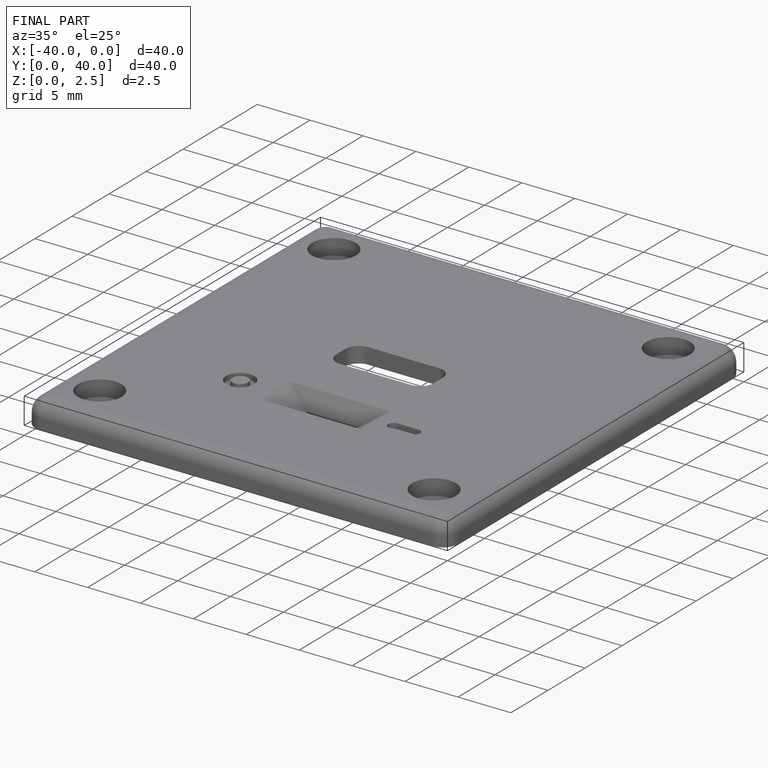
[diagram: finished part — iso view with bounding-box wireframe]
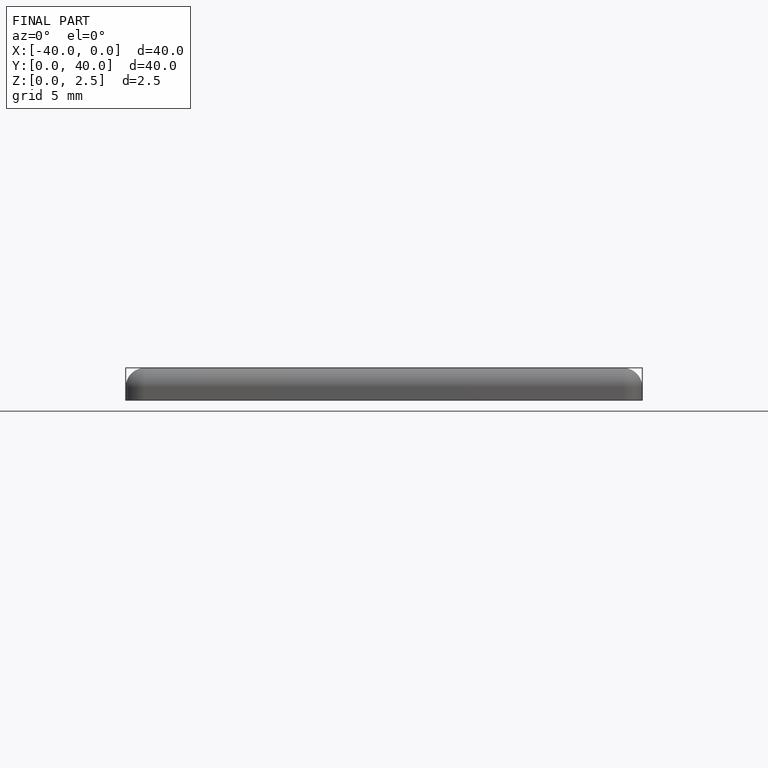
[diagram: finished part — front view with bounding-box wireframe]
